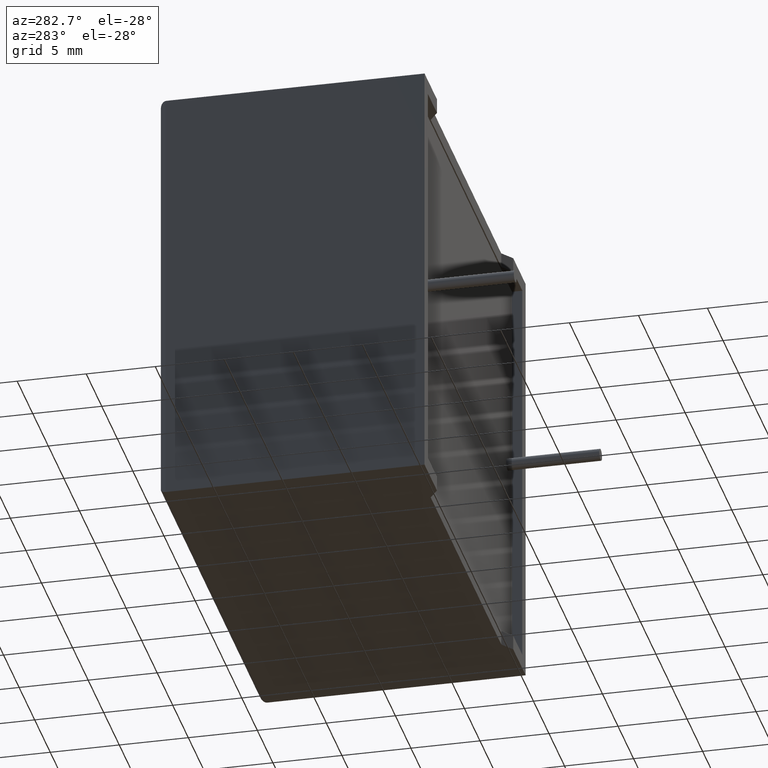
[diagram: clean part render]
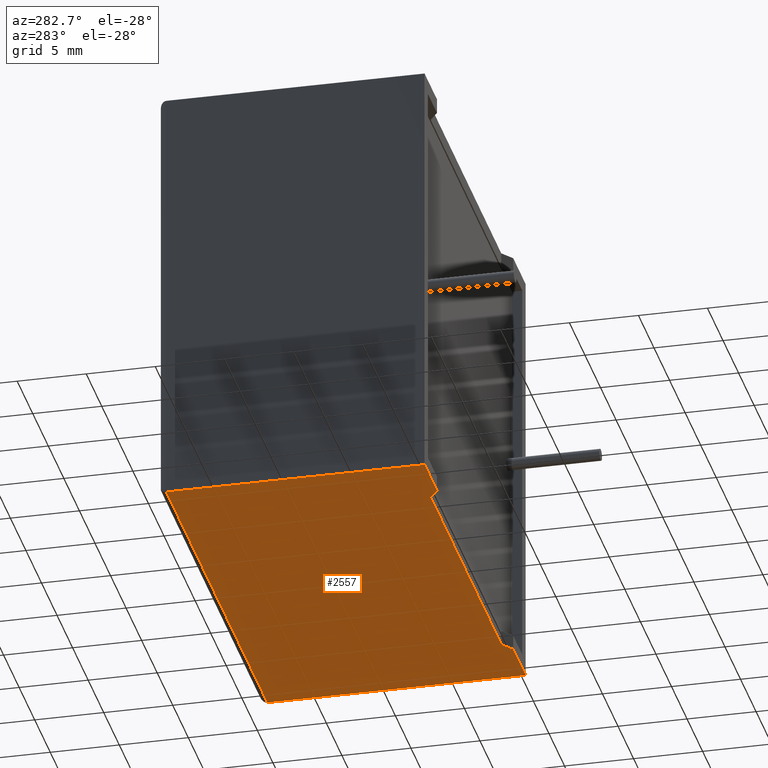
[diagram: same view with one face highlighted and labeled with its STEP entity id]
A machine part, auxiliary view. The second image highlights one B-rep face of the part: STEP entity #2557.
In plain terms, the highlighted planar face has unit normal (0, 0, -1).
Its self-contained STEP definition (entity closure, byte-faithful):
#75 = EDGE_LOOP ( 'NONE', ( #1560, #2435, #1479, #1481, #401, #1191, #1109, #475 ) ) ;
#116 = EDGE_CURVE ( 'NONE', #2096, #2502, #2819, .T. ) ;
#295 = LINE ( 'NONE', #477, #1856 ) ;
#401 = ORIENTED_EDGE ( 'NONE', *, *, #851, .F. ) ;
#475 = ORIENTED_EDGE ( 'NONE', *, *, #2156, .F. ) ;
#477 = CARTESIAN_POINT ( 'NONE',  ( 0.0000000000000000000, 0.0000000000000000000, 0.0000000000000000000 ) ) ;
#497 = AXIS2_PLACEMENT_3D ( 'NONE', #2016, #2477, #1323 ) ;
#543 = DIRECTION ( 'NONE',  ( 0.8063349754175614900, -0.5914591341913323400, -0.0000000000000000000 ) ) ;
#581 = CARTESIAN_POINT ( 'NONE',  ( 4.000000000000000900, 2.449293598294706900E-016, 0.0000000000000000000 ) ) ;
#681 = VERTEX_POINT ( 'NONE', #2718 ) ;
#721 = LINE ( 'NONE', #1867, #2195 ) ;
#740 = EDGE_CURVE ( 'NONE', #1447, #1910, #2602, .T. ) ;
#744 = VERTEX_POINT ( 'NONE', #1325 ) ;
#771 = VERTEX_POINT ( 'NONE', #954 ) ;
#791 = EDGE_CURVE ( 'NONE', #681, #1910, #721, .T. ) ;
#822 = VERTEX_POINT ( 'NONE', #884 ) ;
#851 = EDGE_CURVE ( 'NONE', #822, #771, #2193, .T. ) ;
#884 = CARTESIAN_POINT ( 'NONE',  ( 27.59747499999999900, 0.6620160000000003800, 0.0000000000000000000 ) ) ;
#954 = CARTESIAN_POINT ( 'NONE',  ( 28.50000000000000000, 2.449293598294706900E-016, 0.0000000000000000000 ) ) ;
#961 = DIRECTION ( 'NONE',  ( 1.000000000000000000, 0.0000000000000000000, 0.0000000000000000000 ) ) ;
#997 = CARTESIAN_POINT ( 'NONE',  ( 28.50000000000000000, 2.449293598294706900E-016, 0.0000000000000000000 ) ) ;
#1001 = CARTESIAN_POINT ( 'NONE',  ( 32.50000000000000000, 18.69999999999999900, 0.0000000000000000000 ) ) ;
#1032 = EDGE_CURVE ( 'NONE', #1447, #744, #2269, .T. ) ;
#1083 = CARTESIAN_POINT ( 'NONE',  ( 4.000000000000000900, 2.449293598294706900E-016, 0.0000000000000000000 ) ) ;
#1109 = ORIENTED_EDGE ( 'NONE', *, *, #116, .T. ) ;
#1191 = ORIENTED_EDGE ( 'NONE', *, *, #2507, .T. ) ;
#1323 = DIRECTION ( 'NONE',  ( -1.000000000000000000, 0.0000000000000000000, -0.0000000000000000000 ) ) ;
#1325 = CARTESIAN_POINT ( 'NONE',  ( 0.0000000000000000000, 0.0000000000000000000, 0.0000000000000000000 ) ) ;
#1326 = CARTESIAN_POINT ( 'NONE',  ( 0.0000000000000000000, 18.69999999999999900, 0.0000000000000000000 ) ) ;
#1447 = VERTEX_POINT ( 'NONE', #1326 ) ;
#1479 = ORIENTED_EDGE ( 'NONE', *, *, #791, .F. ) ;
#1481 = ORIENTED_EDGE ( 'NONE', *, *, #2038, .F. ) ;
#1538 = DIRECTION ( 'NONE',  ( -0.8063349754175614900, -0.5914591341913323400, -0.0000000000000000000 ) ) ;
#1556 = VECTOR ( 'NONE', #2936, 1000.000000000000000 ) ;
#1560 = ORIENTED_EDGE ( 'NONE', *, *, #1032, .F. ) ;
#1603 = DIRECTION ( 'NONE',  ( 1.000000000000000000, 0.0000000000000000000, 0.0000000000000000000 ) ) ;
#1614 = CARTESIAN_POINT ( 'NONE',  ( 0.0000000000000000000, 0.0000000000000000000, 0.0000000000000000000 ) ) ;
#1824 = DIRECTION ( 'NONE',  ( 0.0000000000000000000, 1.000000000000000000, 0.0000000000000000000 ) ) ;
#1856 = VECTOR ( 'NONE', #961, 1000.000000000000000 ) ;
#1867 = CARTESIAN_POINT ( 'NONE',  ( 32.50000000000000000, 0.0000000000000000000, 0.0000000000000000000 ) ) ;
#1910 = VERTEX_POINT ( 'NONE', #1001 ) ;
#1969 = VECTOR ( 'NONE', #1603, 1000.000000000000000 ) ;
#2016 = CARTESIAN_POINT ( 'NONE',  ( 0.0000000000000000000, 0.0000000000000000000, 0.0000000000000000000 ) ) ;
#2038 = EDGE_CURVE ( 'NONE', #771, #681, #2370, .T. ) ;
#2096 = VERTEX_POINT ( 'NONE', #2987 ) ;
#2156 = EDGE_CURVE ( 'NONE', #744, #2502, #295, .T. ) ;
#2193 = LINE ( 'NONE', #997, #2492 ) ;
#2195 = VECTOR ( 'NONE', #1824, 1000.000000000000000 ) ;
#2269 = LINE ( 'NONE', #1614, #2812 ) ;
#2294 = CARTESIAN_POINT ( 'NONE',  ( 0.0000000000000000000, 0.0000000000000000000, 0.0000000000000000000 ) ) ;
#2308 = CARTESIAN_POINT ( 'NONE',  ( 32.50000000000000000, 18.69999999999999900, 0.0000000000000000000 ) ) ;
#2324 = LINE ( 'NONE', #2982, #1556 ) ;
#2345 = VECTOR ( 'NONE', #1538, 1000.000000000000100 ) ;
#2370 = LINE ( 'NONE', #2294, #1969 ) ;
#2435 = ORIENTED_EDGE ( 'NONE', *, *, #740, .T. ) ;
#2477 = DIRECTION ( 'NONE',  ( 0.0000000000000000000, 0.0000000000000000000, -1.000000000000000000 ) ) ;
#2492 = VECTOR ( 'NONE', #543, 1000.000000000000100 ) ;
#2502 = VERTEX_POINT ( 'NONE', #1083 ) ;
#2507 = EDGE_CURVE ( 'NONE', #822, #2096, #2324, .T. ) ;
#2540 = DIRECTION ( 'NONE',  ( -0.0000000000000000000, -1.000000000000000000, -0.0000000000000000000 ) ) ;
#2557 = ADVANCED_FACE ( 'NONE', ( #2980 ), #2707, .T. ) ;
#2602 = LINE ( 'NONE', #2308, #2818 ) ;
#2707 = PLANE ( 'NONE',  #497 ) ;
#2718 = CARTESIAN_POINT ( 'NONE',  ( 32.50000000000000000, 0.0000000000000000000, 0.0000000000000000000 ) ) ;
#2729 = DIRECTION ( 'NONE',  ( 1.000000000000000000, -0.0000000000000000000, -0.0000000000000000000 ) ) ;
#2812 = VECTOR ( 'NONE', #2540, 1000.000000000000000 ) ;
#2818 = VECTOR ( 'NONE', #2729, 1000.000000000000000 ) ;
#2819 = LINE ( 'NONE', #581, #2345 ) ;
#2936 = DIRECTION ( 'NONE',  ( -1.000000000000000000, -1.242093791113138400E-016, 0.0000000000000000000 ) ) ;
#2980 = FACE_OUTER_BOUND ( 'NONE', #75, .T. ) ;
#2982 = CARTESIAN_POINT ( 'NONE',  ( 16.25000000000000000, 0.6620160000000018300, 0.0000000000000000000 ) ) ;
#2987 = CARTESIAN_POINT ( 'NONE',  ( 4.902525000000001600, 0.6620160000000003800, 0.0000000000000000000 ) ) ;